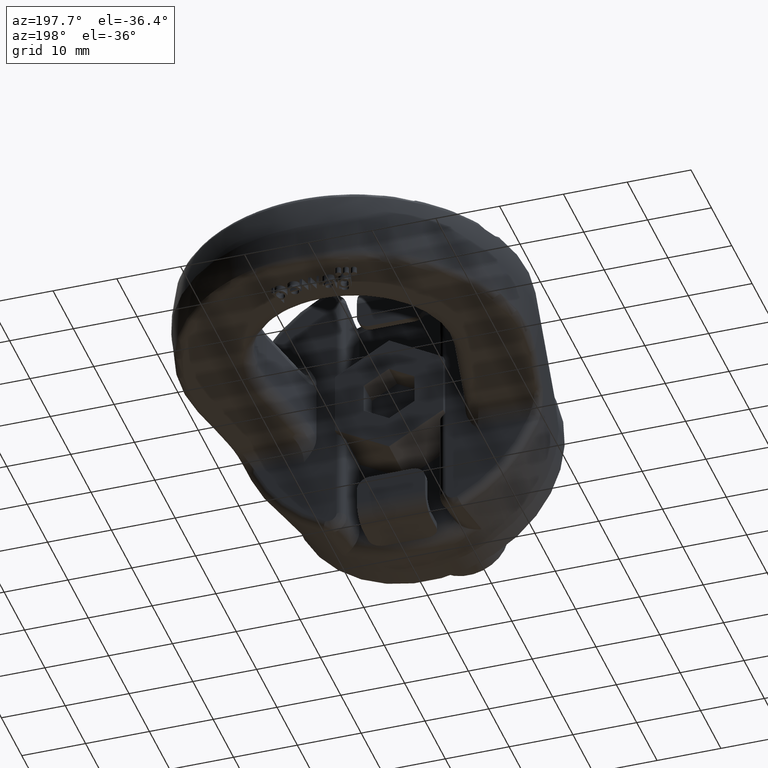
[diagram: clean part render]
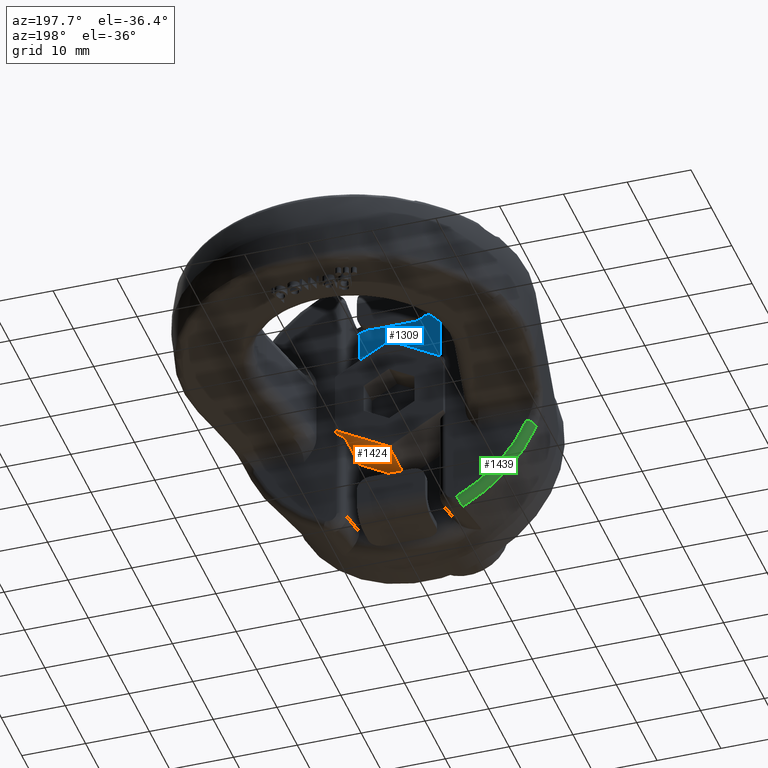
[diagram: same view with three faces highlighted in distinct colors, each labeled with its STEP entity id]
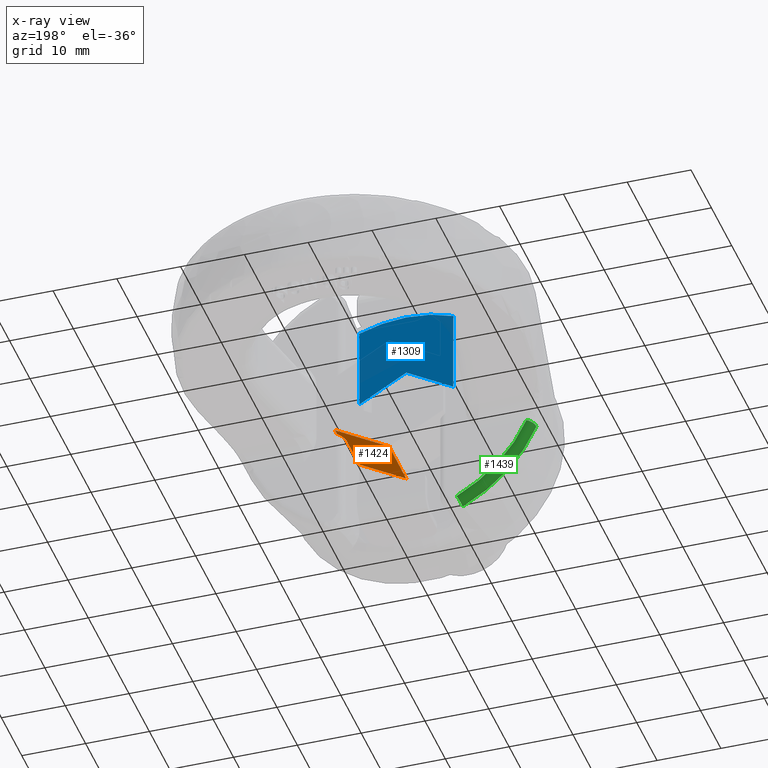
[diagram: x-ray of the same camera — body ghosted, the three highlighted faces saturated]
A machine part, auxiliary view with three faces highlighted in distinct colors.
The next image is the same camera in x-ray (body ghosted, the three faces saturated) — at least one of them is partly hidden behind the body in this view.
Their STEP definitions:

[orange] entity #1424 — the highlighted planar face has unit normal (-0.5, 0, 0.866).
#1053=ELLIPSE('',#5154,1.3856406460551,1.2);
#1194=FACE_OUTER_BOUND('',#1953,.T.);
#1424=ADVANCED_FACE('',(#1194),#1604,.F.);
#1604=PLANE('',#5217);
#1953=EDGE_LOOP('',(#3325,#3326,#3327,#3328,#3329,#3330));
#2106=LINE('',#6478,#2380);
#2141=LINE('',#6818,#2415);
#2241=LINE('',#8315,#2543);
#2245=LINE('',#8343,#2547);
#2247=LINE('',#8354,#2549);
#2380=VECTOR('',#5380,1.);
#2415=VECTOR('',#5489,1.);
#2543=VECTOR('',#5805,1.);
#2547=VECTOR('',#5813,1.);
#2549=VECTOR('',#5819,1.);
#3325=ORIENTED_EDGE('',*,*,#4367,.F.);
#3326=ORIENTED_EDGE('',*,*,#4409,.T.);
#3327=ORIENTED_EDGE('',*,*,#4587,.F.);
#3328=ORIENTED_EDGE('',*,*,#4595,.F.);
#3329=ORIENTED_EDGE('',*,*,#4598,.T.);
#3330=ORIENTED_EDGE('',*,*,#4284,.T.);
#3899=VERTEX_POINT('',#6476);
#3901=VERTEX_POINT('',#6479);
#3974=VERTEX_POINT('',#6817);
#3987=VERTEX_POINT('',#7130);
#4108=VERTEX_POINT('',#8316);
#4114=VERTEX_POINT('',#8342);
#4284=EDGE_CURVE('',#3901,#3899,#2106,.T.);
#4367=EDGE_CURVE('',#3974,#3899,#2141,.T.);
#4409=EDGE_CURVE('',#3974,#3987,#1053,.T.);
#4587=EDGE_CURVE('',#4108,#3987,#2241,.T.);
#4595=EDGE_CURVE('',#4114,#4108,#2245,.T.);
#4598=EDGE_CURVE('',#4114,#3901,#2247,.T.);
#5154=AXIS2_PLACEMENT_3D('',#7131,#5579,#5580);
#5217=AXIS2_PLACEMENT_3D('',#8356,#5822,#5823);
#5380=DIRECTION('',(0.866025403784441,0.,0.499999999999996));
#5489=DIRECTION('',(0.,1.,0.));
#5579=DIRECTION('',(-0.499999999999996,0.,0.866025403784441));
#5580=DIRECTION('',(-0.866025403784441,0.,-0.499999999999996));
#5805=DIRECTION('',(0.,1.,0.));
#5813=DIRECTION('',(0.866025403784441,-1.02198272022936E-16,0.499999999999996));
#5819=DIRECTION('',(0.,1.,0.));
#5822=DIRECTION('',(-0.499999999999996,0.,0.866025403784441));
#5823=DIRECTION('',(0.866025403784441,0.,0.499999999999996));
#6476=CARTESIAN_POINT('',(8.50000000000001,19.,-4.90747728811181));
#6478=CARTESIAN_POINT('',(2.29955623829018E-14,19.,-9.81495457622357));
#6479=CARTESIAN_POINT('',(2.47302858588786E-14,19.,-9.81495457622357));
#6817=CARTESIAN_POINT('',(8.50000000000001,17.9989578808282,-4.90747728811181));
#6818=CARTESIAN_POINT('',(8.50000000000001,1.4,-4.90747728811181));
#7130=CARTESIAN_POINT('',(7.35000000000001,16.8,-5.57143009767988));
#7131=CARTESIAN_POINT('',(8.55000000000001,16.8,-4.87860977465233));
#8315=CARTESIAN_POINT('',(7.35000000000001,18.,-5.57143009767988));
#8316=CARTESIAN_POINT('',(7.35000000000001,10.5,-5.57143009767988));
#8342=CARTESIAN_POINT('',(2.47302858588786E-14,10.5,-9.81495457622357));
#8343=CARTESIAN_POINT('',(-3.33613423223953,10.5,-11.7410725732598));
#8354=CARTESIAN_POINT('',(2.47302858588786E-14,1.4,-9.81495457622357));
#8356=CARTESIAN_POINT('',(2.29955623829018E-14,1.4,-9.81495457622357));

[blue] entity #1309 — the highlighted planar face has unit normal (-0, 1, 0).
#1091=FACE_OUTER_BOUND('',#1819,.T.);
#1309=ADVANCED_FACE('',(#1091),#1546,.T.);
#1546=PLANE('',#5087);
#1667=CIRCLE('',#5086,20.0800916422957);
#1819=EDGE_LOOP('',(#2761,#2762,#2763,#2764,#2765,#2766,#2767));
#2123=LINE('',#6576,#2397);
#2124=LINE('',#6590,#2398);
#2125=LINE('',#6592,#2399);
#2126=LINE('',#6594,#2400);
#2397=VECTOR('',#5405,1.);
#2398=VECTOR('',#5410,1.);
#2399=VECTOR('',#5411,1.);
#2400=VECTOR('',#5412,1.);
#2761=ORIENTED_EDGE('',*,*,#4308,.T.);
#2762=ORIENTED_EDGE('',*,*,#4309,.T.);
#2763=ORIENTED_EDGE('',*,*,#4310,.T.);
#2764=ORIENTED_EDGE('',*,*,#4311,.T.);
#2765=ORIENTED_EDGE('',*,*,#4312,.F.);
#2766=ORIENTED_EDGE('',*,*,#4313,.T.);
#2767=ORIENTED_EDGE('',*,*,#4314,.T.);
#3921=VERTEX_POINT('',#6564);
#3924=VERTEX_POINT('',#6575);
#3925=VERTEX_POINT('',#6582);
#3926=VERTEX_POINT('',#6584);
#3927=VERTEX_POINT('',#6589);
#3928=VERTEX_POINT('',#6591);
#3929=VERTEX_POINT('',#6593);
#4308=EDGE_CURVE('',#3921,#3924,#2123,.T.);
#4309=EDGE_CURVE('',#3924,#3925,#4838,.T.);
#4310=EDGE_CURVE('',#3925,#3926,#1667,.T.);
#4311=EDGE_CURVE('',#3926,#3927,#4839,.T.);
#4312=EDGE_CURVE('',#3928,#3927,#2124,.T.);
#4313=EDGE_CURVE('',#3928,#3929,#2125,.T.);
#4314=EDGE_CURVE('',#3929,#3921,#2126,.T.);
#4838=B_SPLINE_CURVE_WITH_KNOTS('',3,(#6578,#6579,#6580,#6581),
 .UNSPECIFIED.,.F.,.F.,(4,4),(0.,1.),.UNSPECIFIED.);
#4839=B_SPLINE_CURVE_WITH_KNOTS('',3,(#6585,#6586,#6587,#6588),
 .UNSPECIFIED.,.F.,.F.,(4,4),(0.,1.),.UNSPECIFIED.);
#5086=AXIS2_PLACEMENT_3D('',#6583,#5408,#5409);
#5087=AXIS2_PLACEMENT_3D('',#6595,#5413,#5414);
#5405=DIRECTION('',(0.,0.,1.));
#5408=DIRECTION('',(-1.18008399726313E-16,1.,0.));
#5409=DIRECTION('',(-1.,-8.63902170806268E-17,0.));
#5410=DIRECTION('',(0.,0.,1.));
#5411=DIRECTION('',(-0.866025403784442,-1.02198272022936E-16,0.499999999999994));
#5412=DIRECTION('',(-0.866025403784442,-1.02198272022936E-16,-0.499999999999994));
#5413=DIRECTION('',(-1.18008399726313E-16,1.,0.));
#5414=DIRECTION('',(-1.,-1.17961196366423E-16,0.));
#6564=CARTESIAN_POINT('',(-7.35,10.5,5.57143009767989));
#6575=CARTESIAN_POINT('',(-7.35,10.5,18.1057287885859));
#6576=CARTESIAN_POINT('',(-7.35,10.5,30.25));
#6578=CARTESIAN_POINT('',(-7.35,10.5,18.1057287885859));
#6579=CARTESIAN_POINT('',(-7.34999999999981,10.5,18.2923132411981));
#6580=CARTESIAN_POINT('',(-7.37091677235432,10.5,18.4800398771489));
#6581=CARTESIAN_POINT('',(-7.41206358714925,10.5,18.6620308043646));
#6582=CARTESIAN_POINT('',(-7.41206358714925,10.5,18.6620308043646));
#6583=CARTESIAN_POINT('',(-1.52614395856562E-13,10.5,0.));
#6584=CARTESIAN_POINT('',(7.41206358714925,10.5,18.6620308043645));
#6585=CARTESIAN_POINT('',(7.41206358714925,10.5,18.6620308043645));
#6586=CARTESIAN_POINT('',(7.37091677235432,10.5,18.4800398771488));
#6587=CARTESIAN_POINT('',(7.3499999999998,10.5,18.292313241198));
#6588=CARTESIAN_POINT('',(7.35,10.5,18.1057287885858));
#6589=CARTESIAN_POINT('',(7.35,10.5,18.1057287885858));
#6590=CARTESIAN_POINT('',(7.35,10.5,30.25));
#6591=CARTESIAN_POINT('',(7.35,10.5,5.57143009767989));
#6592=CARTESIAN_POINT('',(-14.3611342322397,10.5,18.1063592910753));
#6593=CARTESIAN_POINT('',(-1.73472347597681E-15,10.5,9.81495457622357));
#6594=CARTESIAN_POINT('',(3.33613423223956,10.5,11.7410725732598));
#6595=CARTESIAN_POINT('',(-7.35,10.5,30.25));

[green] entity #1439 — the highlighted toroidal blend (fillet) surface has major radius 23.0586 mm and minor (blend) radius 1.2 mm.
#1022=TOROIDAL_SURFACE('',#5235,23.0585735614723,1.2);
#1209=FACE_OUTER_BOUND('',#1968,.T.);
#1439=ADVANCED_FACE('',(#1209),#1022,.T.);
#1665=CIRCLE('',#5082,23.0585735614723);
#1671=CIRCLE('',#5093,24.2348963405291);
#1717=CIRCLE('',#5233,1.2);
#1718=CIRCLE('',#5234,1.2);
#1968=EDGE_LOOP('',(#3389,#3390,#3391,#3392));
#3389=ORIENTED_EDGE('',*,*,#4614,.T.);
#3390=ORIENTED_EDGE('',*,*,#4298,.F.);
#3391=ORIENTED_EDGE('',*,*,#4615,.F.);
#3392=ORIENTED_EDGE('',*,*,#4331,.F.);
#3914=VERTEX_POINT('',#6542);
#3915=VERTEX_POINT('',#6544);
#3945=VERTEX_POINT('',#6688);
#3946=VERTEX_POINT('',#6690);
#4298=EDGE_CURVE('',#3914,#3915,#1665,.T.);
#4331=EDGE_CURVE('',#3945,#3946,#1671,.T.);
#4614=EDGE_CURVE('',#3945,#3915,#1717,.T.);
#4615=EDGE_CURVE('',#3946,#3914,#1718,.T.);
#5082=AXIS2_PLACEMENT_3D('',#6543,#5394,#5395);
#5093=AXIS2_PLACEMENT_3D('',#6689,#5431,#5432);
#5233=AXIS2_PLACEMENT_3D('',#8577,#5855,#5856);
#5234=AXIS2_PLACEMENT_3D('',#8596,#5857,#5858);
#5235=AXIS2_PLACEMENT_3D('',#8597,#5859,#5860);
#5394=DIRECTION('',(1.60537885778491E-15,1.,3.76125935027901E-30));
#5395=DIRECTION('',(1.,-1.65508574802981E-15,2.34291072916505E-15));
#5431=DIRECTION('',(-1.60537885778491E-15,-1.,-3.76125935027901E-30));
#5432=DIRECTION('',(-1.,1.57475055536617E-15,-2.34291072916505E-15));
#5855=DIRECTION('',(0.390310353587435,-1.76208204144733E-14,-0.920683348324738));
#5856=DIRECTION('',(-0.920683348324738,0.,-0.390310353587436));
#5857=DIRECTION('',(0.895248796861606,-1.39531625560938E-15,-0.445566596276973));
#5858=DIRECTION('',(-0.445566596276972,0.,-0.895248796861607));
#5859=DIRECTION('',(1.60537885778491E-15,1.,3.76125935027901E-30));
#5860=DIRECTION('',(1.,-1.57321354344189E-15,2.34291072916505E-15));
#6542=CARTESIAN_POINT('',(-10.2741301367874,18.,-20.643160238253));
#6543=CARTESIAN_POINT('',(2.32391457489408E-13,18.,5.44472439118236E-28));
#6544=CARTESIAN_POINT('',(-21.2296447141686,18.,-9.00000000000006));
#6688=CARTESIAN_POINT('',(-22.3126655091013,16.5627981461453,-9.45913095982666));
#6689=CARTESIAN_POINT('',(9.39089219997576E-14,16.5627981461453,2.20020220917556E-28));
#6690=CARTESIAN_POINT('',(-10.7982602735748,16.5627981461453,-21.6962617909244));
#8577=CARTESIAN_POINT('',(-21.2296447141686,16.8,-9.00000000000006));
#8596=CARTESIAN_POINT('',(-10.2741301367874,16.8,-20.643160238253));
#8597=CARTESIAN_POINT('',(2.30465002860066E-13,16.8,5.39958927897902E-28));